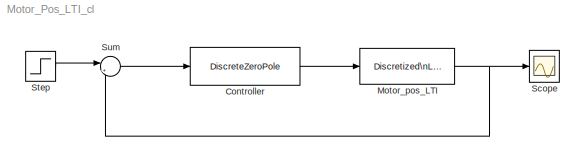
MODEL Motor_Pos_LTI_cl
KIND model
BLOCK [DiscreteZeroPole] Controller
  Gain = 800
  Poles = [-0.98 0.6 1]
  SID = 25
  SampleTime = 0.001
  Zeros = [0.95 0.80 0.80]
BLOCK [Reference] Motor_pos_LTI  REF=discretizing/Discretized\nLTI System  (lib defined in mdl_5048aa1cd587)
  FunctionWithSeparateData = off
  Ports = [1, 1]
  RTWMemSecDataConstants = Inherit from model
  RTWMemSecDataInternal = Inherit from model
  RTWMemSecDataParameters = Inherit from model
  RTWMemSecFuncExecute = Inherit from model
  RTWMemSecFuncInitTerm = Inherit from model
  SID = 24
  SampleTime = 0.00100000000000000002
  ShowPortLabels = FromPortIcon
  SourceBlock = discretizing/Discretized\nLTI System
  SourceType = DiscretizedLTISystem
  SystemSampleTime = -1
  Wc = 0
  cic = [0]
  method = zoh
  sysc = ss(A, B, C, D)
BLOCK [Scope] Scope
  DataFormat = StructureWithTime
  Floating = off
  NumInputPorts = 1
  Ports = [1]
  SID = 20
  SampleTime = 0
  YMax = 1.04
  YMin = 1.0025
BLOCK [Step] Step
  SID = 23
  SampleTime = 0.001
  Time = 0
BLOCK [Sum] Sum
  IconShape = round
  InputSameDT = off
  Inputs = |+-
  OutDataType = fixdt(1, 16)
  OutDataTypeMode = Inherit via internal rule
  OutDataTypeStr = Inherit: Inherit via internal rule
  OutScaling = 2^0
  Ports = [2, 1]
  SID = 22
  SampleTime = 0.001
  SaturateOnIntegerOverflow = off
LINE Controller:1 -> Motor_pos_LTI:1
NET Motor_pos_LTI:1 -> Scope:1, Sum:2
LINE Step:1 -> Sum:1
LINE Sum:1 -> Controller:1
note: NET lines group one-source signal fan-out (src -> all destinations, sorted); 1:1 wires keep LINE
